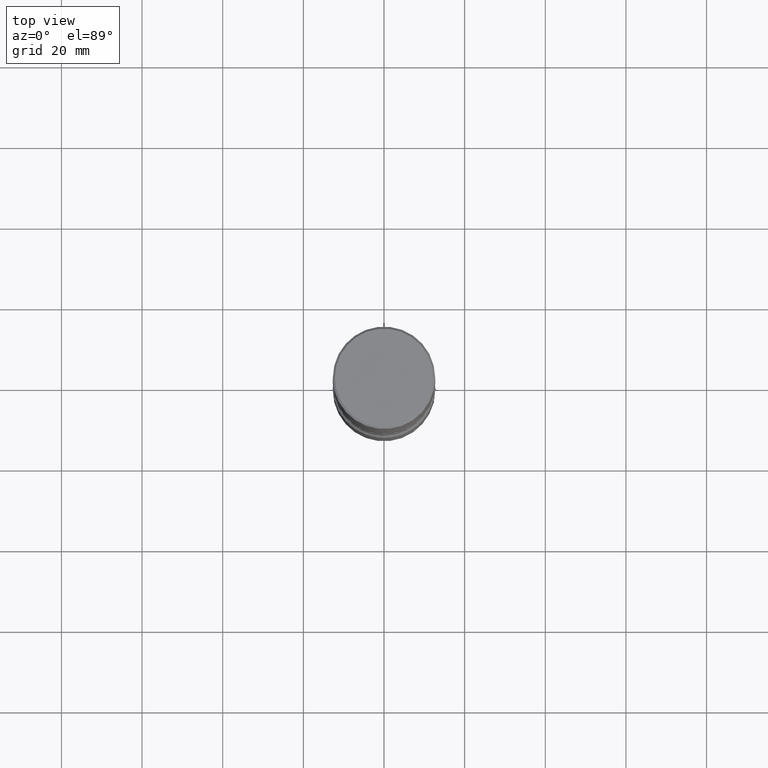
[diagram: clean part render]
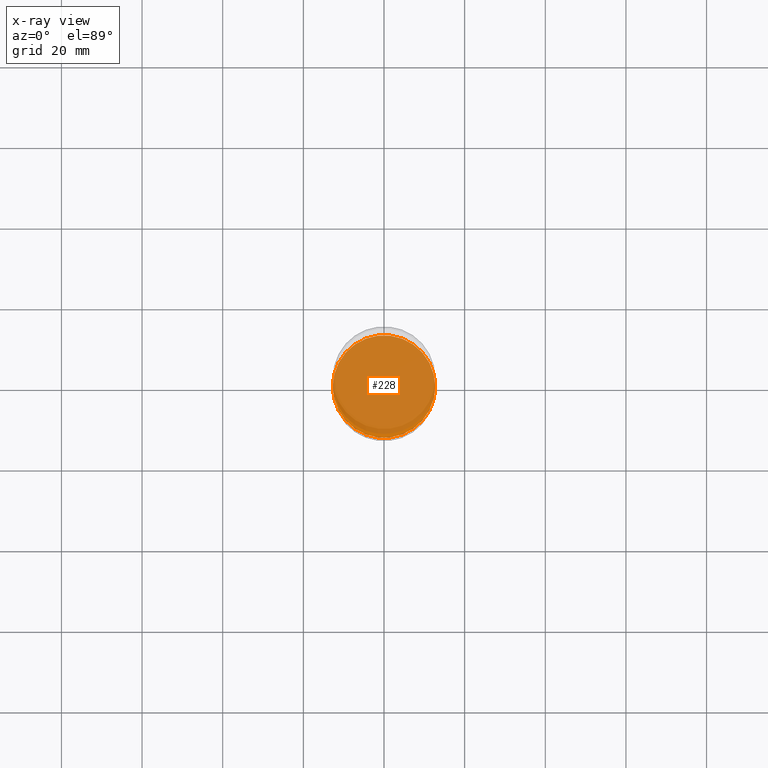
[diagram: x-ray — body ghosted, one internal face saturated and labeled with its STEP entity id]
A machine part, top view, then the same camera in x-ray: the body is ghosted and one INTERNAL B-rep face — a face not visible from any outside direction — is saturated and labeled: STEP entity #228.
In plain terms, the highlighted planar face has unit normal (0, -0, -1).
Its self-contained STEP definition (entity closure, byte-faithful):
#8 = VERTEX_POINT ( 'NONE', #280 ) ;
#45 = DIRECTION ( 'NONE',  ( -1.000000000000000000, 6.982962677686265922E-15, -4.876176775795935793E-29 ) ) ;
#51 = DIRECTION ( 'NONE',  ( 2.438088387897960049E-29, -3.491481338843145188E-15, -1.000000000000000000 ) ) ;
#64 = EDGE_CURVE ( 'NONE', #160, #8, #439, .T. ) ;
#104 = EDGE_CURVE ( 'NONE', #8, #160, #416, .T. ) ;
#144 = CARTESIAN_POINT ( 'NONE',  ( 0.5000000000000002220, -2.094888803305886009E-14, -4.999999999999999112 ) ) ;
#149 = FACE_OUTER_BOUND ( 'NONE', #230, .T. ) ;
#160 = VERTEX_POINT ( 'NONE', #144 ) ;
#191 = CARTESIAN_POINT ( 'NONE',  ( 1.222734403092568074E-28, -1.745740669421572673E-14, -4.999999999999999112 ) ) ;
#208 = AXIS2_PLACEMENT_3D ( 'NONE', #311, #402, #222 ) ;
#214 = AXIS2_PLACEMENT_3D ( 'NONE', #442, #51, #45 ) ;
#222 = DIRECTION ( 'NONE',  ( 1.000000000000000000, -6.982962677686263555E-15, 0.000000000000000000 ) ) ;
#228 = ADVANCED_FACE ( 'NONE', ( #149 ), #268, .F. ) ;
#230 = EDGE_LOOP ( 'NONE', ( #409, #445 ) ) ;
#243 = DIRECTION ( 'NONE',  ( 1.000000000000000000, -6.982962677686263555E-15, 0.000000000000000000 ) ) ;
#268 = PLANE ( 'NONE',  #214 ) ;
#280 = CARTESIAN_POINT ( 'NONE',  ( -0.5000000000000002220, -1.723905769401042541E-14, -4.999999999999999112 ) ) ;
#311 = CARTESIAN_POINT ( 'NONE',  ( 1.222734403092568074E-28, -1.745740669421572673E-14, -4.999999999999999112 ) ) ;
#402 = DIRECTION ( 'NONE',  ( -2.445468806185136597E-29, 3.491481338843145583E-15, 1.000000000000000000 ) ) ;
#409 = ORIENTED_EDGE ( 'NONE', *, *, #64, .T. ) ;
#416 = CIRCLE ( 'NONE', #208, 0.5000000000000002220 ) ;
#439 = CIRCLE ( 'NONE', #518, 0.5000000000000002220 ) ;
#442 = CARTESIAN_POINT ( 'NONE',  ( 1.222734403092568074E-28, -1.745740669421572673E-14, -4.999999999999999112 ) ) ;
#445 = ORIENTED_EDGE ( 'NONE', *, *, #104, .T. ) ;
#465 = DIRECTION ( 'NONE',  ( -2.445468806185136597E-29, 3.491481338843145583E-15, 1.000000000000000000 ) ) ;
#518 = AXIS2_PLACEMENT_3D ( 'NONE', #191, #465, #243 ) ;